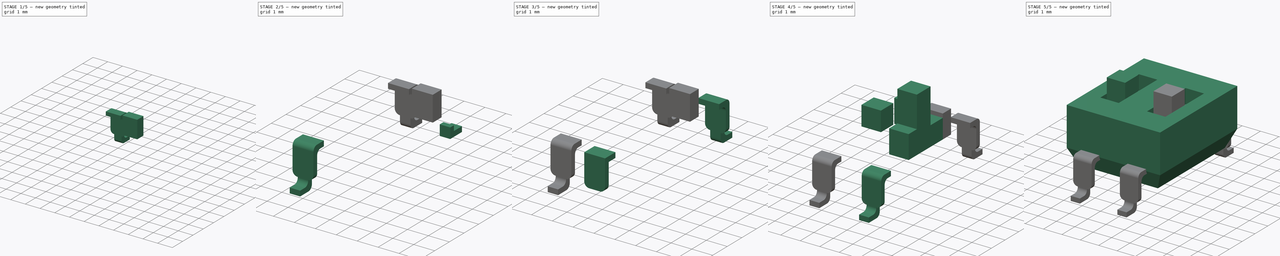
[diagram: build sequence overview — one tinted view per stage of 5, left to right]
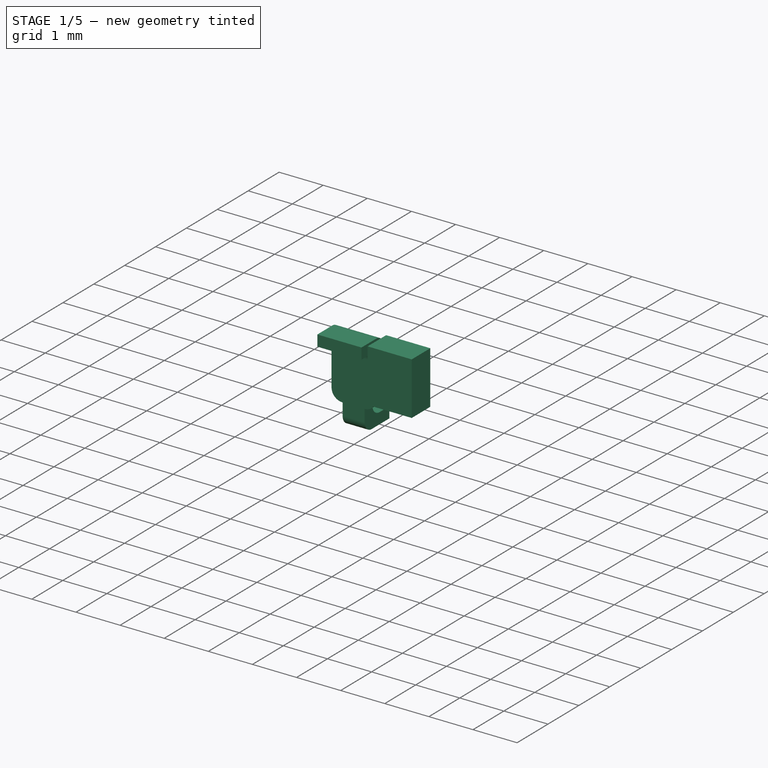
[diagram: stage 1 of 5 — iso view after this stage's code; geometry added in this stage tinted green]
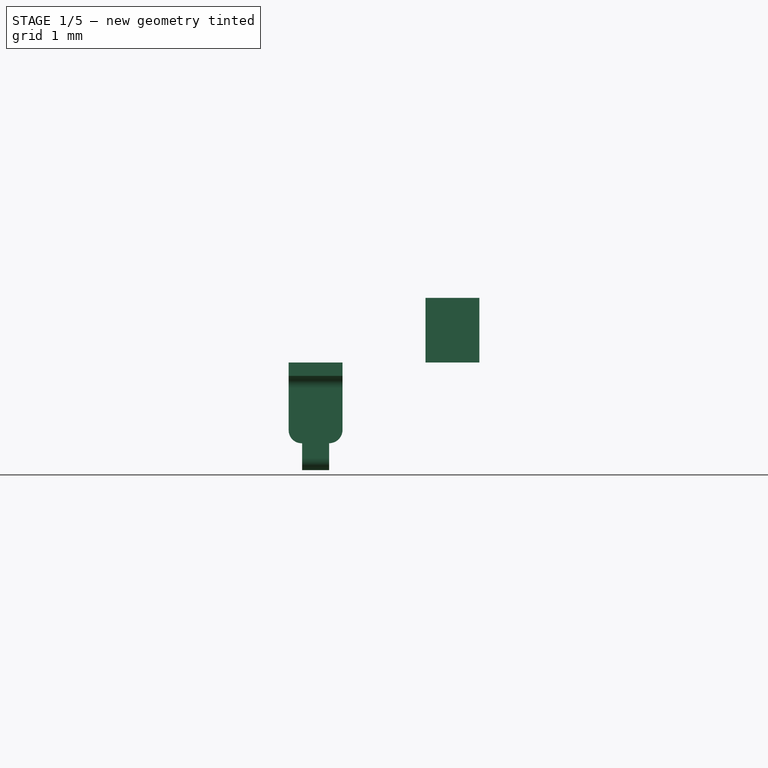
[diagram: stage 1 of 5 — front view after this stage's code; geometry added in this stage tinted green]
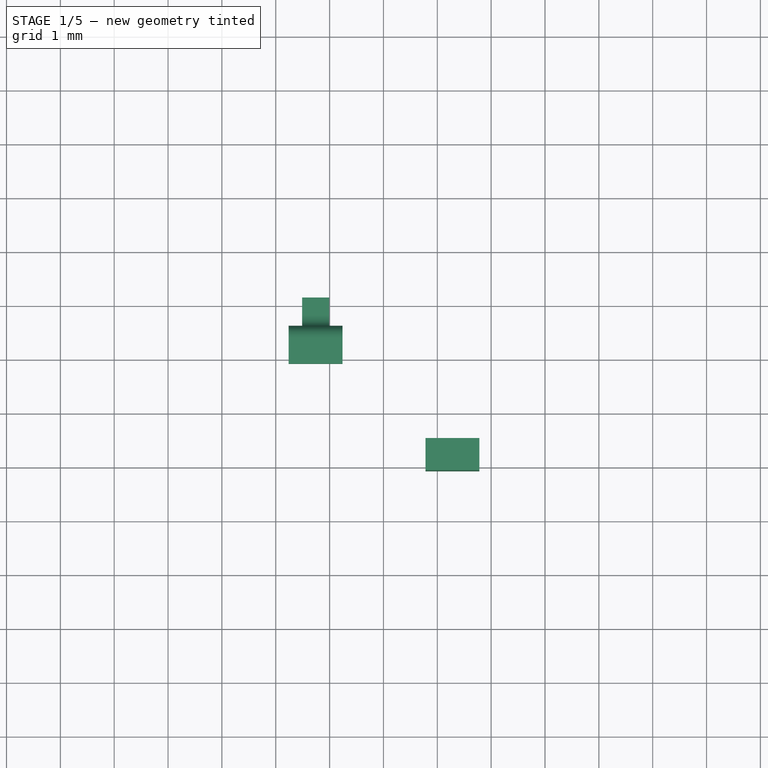
[diagram: stage 1 of 5 — top view after this stage's code; geometry added in this stage tinted green]
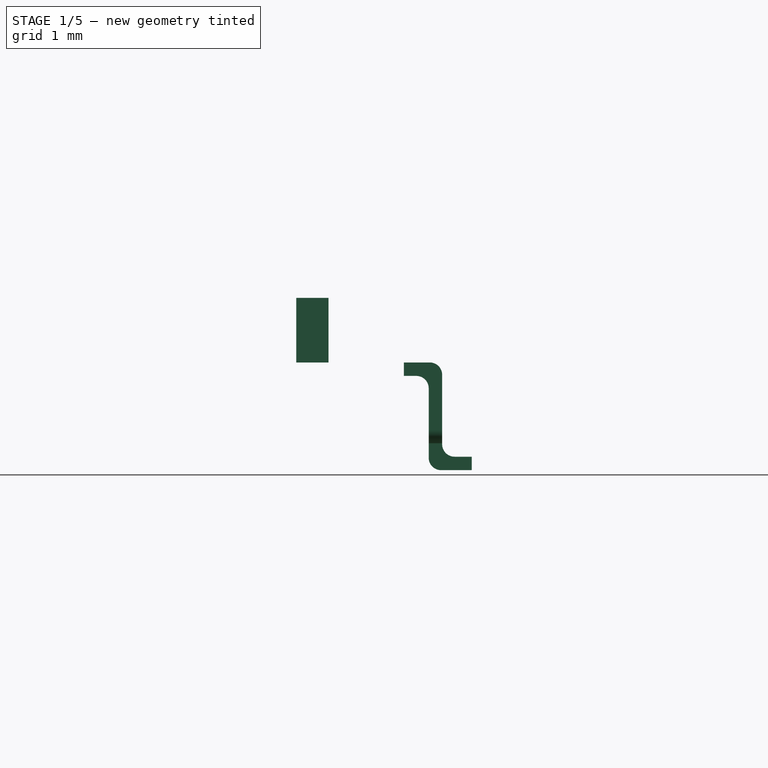
[diagram: stage 1 of 5 — right view after this stage's code; geometry added in this stage tinted green]
FCSTD DOCUMENT  (FreeCAD 0.19R24366 (Git))
Label: DSIC02LSGET
License: Creative Commons Attribution-ShareAlike
LicenseURL: http://creativecommons.org/licenses/by-sa/4.0/
objects: Part::Box×21, Part::MultiFuse×9, Sketcher::SketchObject×8, PartDesign::Pad×8, PartDesign::Body×8, Part::Fillet×8, Part::Cut×5, Part::Part2DObjectPython×4, Part::Chamfer×1
note: 80 computed .brp shape members not serialized (recipe doc carries the construction recipe); baked Part::Feature solids carry a one-line shape summary decoded from their .brp

FEATURE [Sketcher::SketchObject] Sketch006
  FullyConstrained = true
  MapMode = 5
  Placement = pos=(0,0,0) rot=(0.57735,0.57735,0.57735;2.0944rad)
  Support = -> [YZ_Plane006]
  sketch-geometry (6):
    g0: LineSegment StartX=3.1 StartY=2 StartZ=0 EndX=3.81 EndY=2 EndZ=0
    g1: LineSegment StartX=3.1 StartY=1.75 StartZ=0 EndX=3.56 EndY=1.75 EndZ=0
    g2: LineSegment StartX=3.56 StartY=1.75 StartZ=0 EndX=3.56 EndY=0.49 EndZ=0
    g3: LineSegment StartX=3.56 StartY=0.49 StartZ=0 EndX=3.81 EndY=0.49 EndZ=0
    g4: LineSegment StartX=3.81 StartY=2 StartZ=0 EndX=3.81 EndY=0.49 EndZ=0
    g5: LineSegment StartX=3.1 StartY=2 StartZ=0 EndX=3.1 EndY=1.75 EndZ=0
  constraints (18):
    c: Horizontal(g0)
    c: Horizontal(g1)
    c: Vertical(g2)
    c: Horizontal(g3)
    c: Vertical(g4)
    c: Vertical(g5)
    c: Coincident(g0,g5)
    c: Coincident(g1,g5)
    c: Coincident(g0,g4)
    c: Coincident(g3,g4)
    c: Coincident(g2,g3)
    c: Coincident(g1,g2)
    c: DistanceY(g0) = 2
    c: DistanceX(g0) = 3.81
    c: DistanceX(g1) = 3.56
    c: DistanceY(g1) = 1.75
    c: DistanceY(g2) = 0.49
    c: DistanceX(g1) = 3.1
FEATURE [PartDesign::Pad] Pad006
  Direction = (1,1,1)
  Length = 1
  Length2 = 100
  Placement = pos=(0,0,0) rot=(0.57735,0.57735,0.57735;2.0944rad)
  Profile = -> Sketch006
  Type = 0
FEATURE [PartDesign::Body] Body006
  Group = -> [Sketch006,Pad006]
  Origin = -> Origin006
  Tip = -> Pad006
FEATURE [Sketcher::SketchObject] Sketch007
  FullyConstrained = true
  MapMode = 5
  Placement = pos=(0,0,0) rot=(1,0,0;1.5708rad)
  Support = -> [XZ_Plane007]
  sketch-geometry (6):
    g0: LineSegment StartX=0.25 StartY=0.5 StartZ=0 EndX=0.75 EndY=0.5 EndZ=0
    g1: ArcOfCircle CenterX=0.24 CenterY=0.74 CenterZ=0 NormalX=0 NormalY=0 NormalZ=1 AngleXU=0 Radius=0.240208 StartAngle=3.09995 EndAngle=4.75403
    g2: ArcOfCircle CenterX=0.75 CenterY=0.75 CenterZ=0 NormalX=0 NormalY=0 NormalZ=1 AngleXU=0 Radius=0.25 StartAngle=4.71239 EndAngle=6.28319
    g3: LineSegment StartX=9.0039e-12 StartY=0.75 StartZ=0 EndX=9.0039e-12 EndY=0.48 EndZ=0
    g4: LineSegment StartX=9.0039e-12 StartY=0.48 StartZ=0 EndX=1 EndY=0.48 EndZ=0
    g5: LineSegment StartX=1 StartY=0.48 StartZ=0 EndX=1 EndY=0.75 EndZ=0
  constraints (20):
    c: Horizontal(g0)
    c: Vertical(g3)
    c: Horizontal(g4)
    c: Vertical(g5)
    c: Coincident(g3,g4)
    c: DistanceX(g3) = 0
    c: Coincident(g4,g5)
    c: DistanceX(g4) = 1
    c: DistanceY(g3) = 0.75
    c: DistanceY(g3) = 0.48
    c: DistanceX(g0) = 0.25
    c: DistanceX(g0) = 0.75
    c: DistanceY(g5) = 0.75
    c: DistanceY(g0) = 0.5
    c: Coincident(g1,g3)
    c: Coincident(g0,g1)
    c: Coincident(g0,g2)
    c: Coincident(g2,g5)
    c: DistanceX(g1) = 0.24
    c: DistanceX(g2) = 0.75
FEATURE [PartDesign::Pad] Pad007
  Direction = (1,1,1)
  Length = 0.25
  Length2 = 100
  Placement = pos=(0,0,0) rot=(1,0,0;1.5708rad)
  Profile = -> Sketch007
  Type = 0
FEATURE [PartDesign::Body] Body007
  Group = -> [Sketch007,Pad007]
  Origin = -> Origin007
  Placement = pos=(0,3.81,0) rot=(0,0,1;0rad)
  Tip = -> Pad007
FEATURE [Part::Cut] Cut004
  Base = -> Body006
  Tool = -> Body007
FEATURE [Part::Fillet] Fillet006
  Base = -> Cut004
  Edges = 2 edges r=0.23: [Edge2,Edge19]
FEATURE [Part::Box] Box018  label="Cube018"
  AttacherType = Attacher::AttachEngine3D
  Height = 0.25
  Length = 0.5
  Placement = pos=(0.25,3.56,0) rot=(0,0,1;0rad)
  Width = 0.8
FEATURE [Part::Box] Box019  label="Cube019"
  AttacherType = Attacher::AttachEngine3D
  Height = 0.25
  Length = 0.5
  Placement = pos=(0.25,3.56,0.25) rot=(0,0,1;0rad)
  Width = 0.25
FEATURE [Part::MultiFuse] Fusion007
  Shapes = -> [Box019,Box018]
FEATURE [Part::Fillet] Fillet007
  Base = -> Fusion007
  Edges = 2 edges r=0.23: [Edge10,Edge16]
FEATURE [Part::MultiFuse] Fusion008
  Placement = pos=(-1.76,-0.2,0) rot=(0,0,1;0rad)
  Shapes = -> [Fillet006,Fillet007]
FEATURE [Part::Part2DObjectPython] ShapeString  # Draft 2D object (typed FeaturePython)
  FontFile = <path>
  Placement = pos=(-2.2,1.8,4.05) rot=(0,0,1;0rad)
  Size = 1
  String = ON
  Tracking = 0
FEATURE [Part::Part2DObjectPython] ShapeString001  # Draft 2D object (typed FeaturePython)
  FontFile = <path>
  Placement = pos=(-1.6,-2.7,4.05) rot=(0,0,1;0rad)
  Size = 0.8
  String = 1
  Tracking = 0
FEATURE [Part::Part2DObjectPython] ShapeString002  # Draft 2D object (typed FeaturePython)
  FontFile = <path>
  Placement = pos=(1,-2.7,4.05) rot=(0,0,1;0rad)
  Size = 0.8
  String = 2
  Tracking = 0
FEATURE [Part::Part2DObjectPython] ShapeString003  # Draft 2D object (typed FeaturePython)
  FontFile = <path>
  Placement = pos=(0.4,1.8,4.05) rot=(0,0,1;0rad)
  Size = 1
  String = KE
  Tracking = 0
FEATURE [Part::Box] Box020  label="Cube020"
  AttacherType = Attacher::AttachEngine3D
  Height = 1.2
  Length = 1
  Placement = pos=(0.78,0.9,2) rot=(0,0,1;0rad)
  Width = 0.6
note: 4 file-system paths scrubbed to <path> (originals preserved in the JSON sidecar)
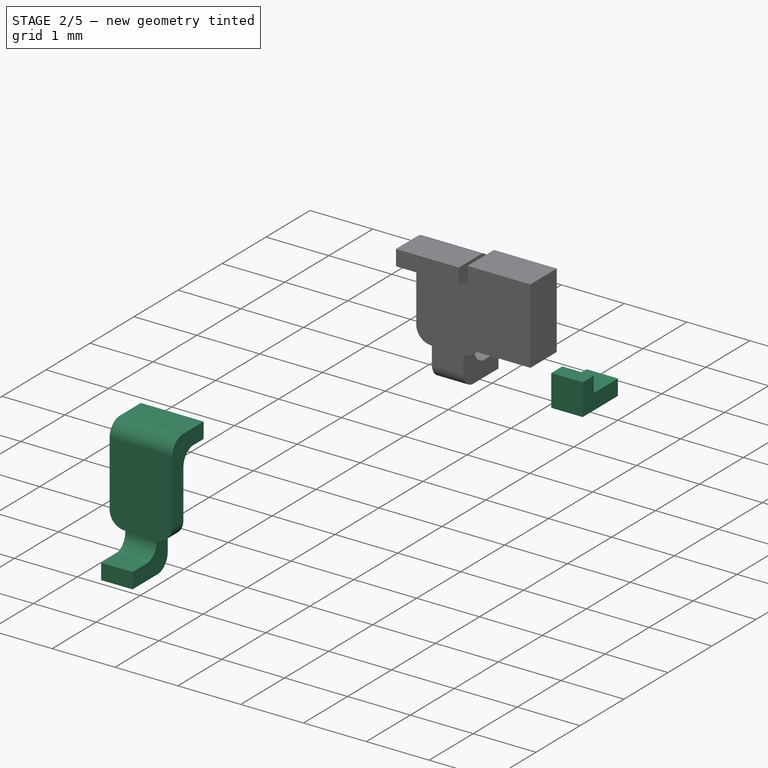
[diagram: stage 2 of 5 — iso view after this stage's code; geometry added in this stage tinted green]
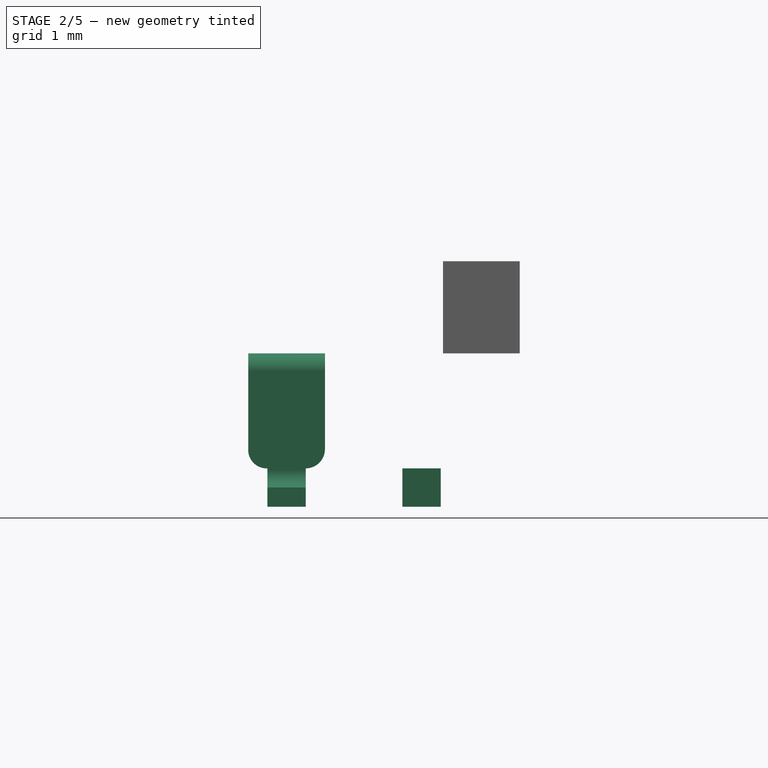
[diagram: stage 2 of 5 — front view after this stage's code; geometry added in this stage tinted green]
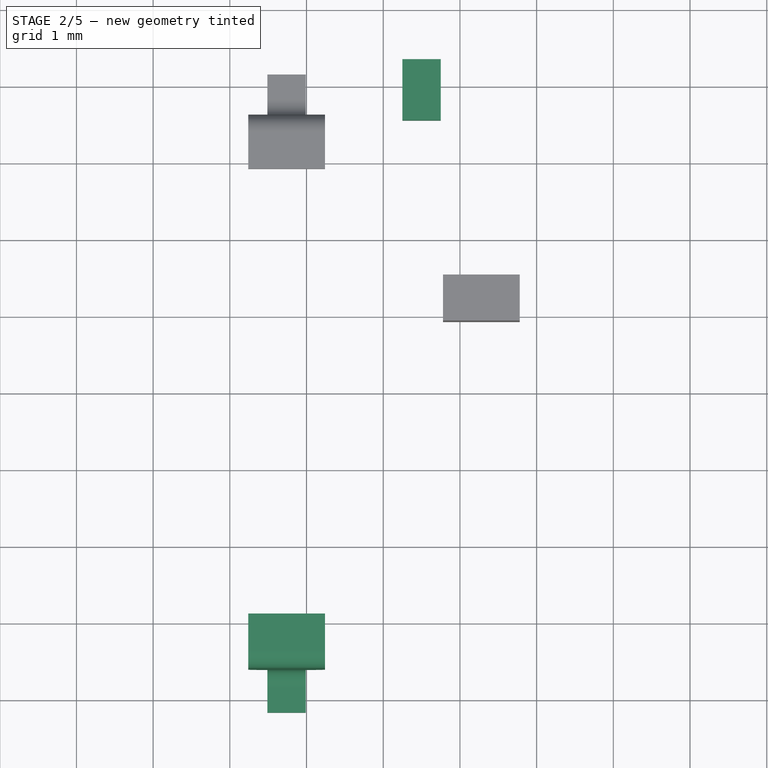
[diagram: stage 2 of 5 — top view after this stage's code; geometry added in this stage tinted green]
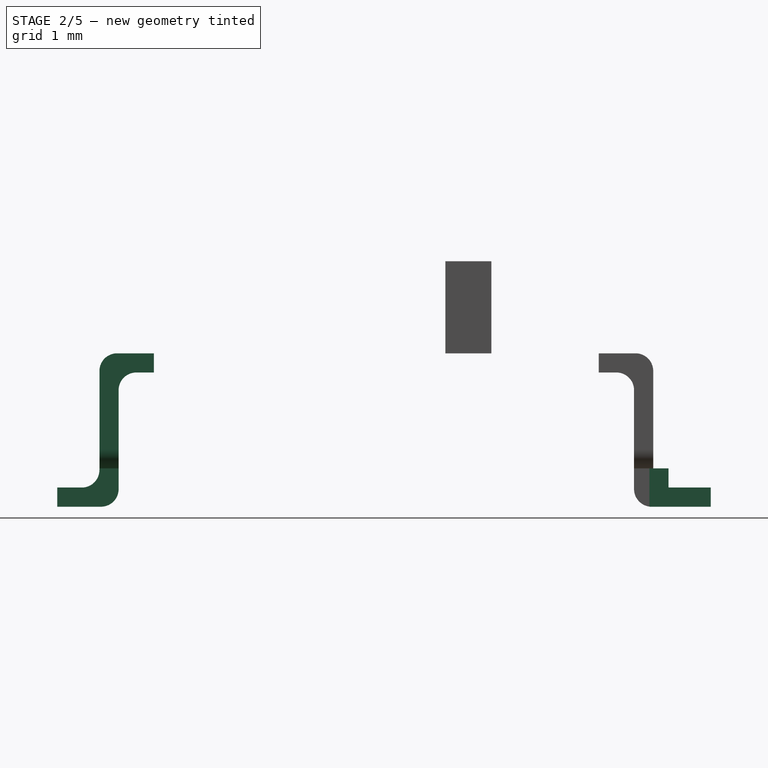
[diagram: stage 2 of 5 — right view after this stage's code; geometry added in this stage tinted green]
FEATURE [Part::Box] Box014  label="Cube014"
  AttacherType = Attacher::AttachEngine3D
  Height = 0.25
  Length = 0.5
  Placement = pos=(0.25,3.56,0) rot=(0,0,1;0rad)
  Width = 0.8
FEATURE [Part::Box] Box015  label="Cube015"
  AttacherType = Attacher::AttachEngine3D
  Height = 0.25
  Length = 0.5
  Placement = pos=(0.25,3.56,0.25) rot=(0,0,1;0rad)
  Width = 0.25
FEATURE [Sketcher::SketchObject] Sketch004
  FullyConstrained = true
  MapMode = 5
  Placement = pos=(0,0,0) rot=(0.57735,0.57735,0.57735;2.0944rad)
  Support = -> [YZ_Plane004]
  sketch-geometry (6):
    g0: LineSegment StartX=-3.1 StartY=2 StartZ=0 EndX=-3.81 EndY=2 EndZ=0
    g1: LineSegment StartX=-3.1 StartY=1.75 StartZ=0 EndX=-3.56 EndY=1.75 EndZ=0
    g2: LineSegment StartX=-3.56 StartY=1.75 StartZ=0 EndX=-3.56 EndY=0.49 EndZ=0
    g3: LineSegment StartX=-3.81 StartY=2 StartZ=0 EndX=-3.81 EndY=0.49 EndZ=0
    g4: LineSegment StartX=-3.1 StartY=2 StartZ=0 EndX=-3.1 EndY=1.75 EndZ=0
    g5: LineSegment StartX=-3.81 StartY=0.49 StartZ=0 EndX=-3.56 EndY=0.49 EndZ=0
  constraints (18):
    c: Horizontal(g0)
    c: Horizontal(g1)
    c: Vertical(g2)
    c: Vertical(g3)
    c: DistanceX(g0) = -3.1
    c: DistanceY(g0) = 2
    c: DistanceX(g0) = -3.81
    c: Coincident(g0,g3)
    c: DistanceX(g1) = -3.56
    c: Coincident(g1,g2)
    c: DistanceY(g1) = 1.75
    c: DistanceX(g1) = -3.1
    c: Coincident(g0,g4)
    c: Coincident(g1,g4)
    c: Horizontal(g5)
    c: Coincident(g3,g5)
    c: Coincident(g2,g5)
    c: DistanceY(g3) = 0.49
FEATURE [PartDesign::Pad] Pad004
  Direction = (1,1,1)
  Length = 1
  Length2 = 100
  Placement = pos=(0,0,0) rot=(0.57735,0.57735,0.57735;2.0944rad)
  Profile = -> Sketch004
  Type = 0
FEATURE [PartDesign::Body] Body004
  Group = -> [Sketch004,Pad004]
  Origin = -> Origin004
  Tip = -> Pad004
FEATURE [Sketcher::SketchObject] Sketch005
  FullyConstrained = true
  MapMode = 5
  Placement = pos=(0,0,0) rot=(1,0,0;1.5708rad)
  Support = -> [XZ_Plane005]
  sketch-geometry (6):
    g0: LineSegment StartX=0.25 StartY=0.5 StartZ=0 EndX=0.75 EndY=0.5 EndZ=0
    g1: ArcOfCircle CenterX=0.24 CenterY=0.74 CenterZ=0 NormalX=0 NormalY=0 NormalZ=1 AngleXU=0 Radius=0.240208 StartAngle=3.09995 EndAngle=4.75403
    g2: ArcOfCircle CenterX=0.75 CenterY=0.75 CenterZ=0 NormalX=0 NormalY=0 NormalZ=1 AngleXU=0 Radius=0.25 StartAngle=4.71239 EndAngle=6.28319
    g3: LineSegment StartX=9.0039e-12 StartY=0.75 StartZ=0 EndX=9.0039e-12 EndY=0.48 EndZ=0
    g4: LineSegment StartX=9.0039e-12 StartY=0.48 StartZ=0 EndX=1 EndY=0.48 EndZ=0
    g5: LineSegment StartX=1 StartY=0.48 StartZ=0 EndX=1 EndY=0.75 EndZ=0
  constraints (20):
    c: Horizontal(g0)
    c: Vertical(g3)
    c: Horizontal(g4)
    c: Vertical(g5)
    c: Coincident(g3,g4)
    c: DistanceX(g3) = 0
    c: Coincident(g4,g5)
    c: DistanceX(g4) = 1
    c: DistanceY(g3) = 0.75
    c: DistanceY(g3) = 0.48
    c: DistanceX(g0) = 0.25
    c: DistanceX(g0) = 0.75
    c: DistanceY(g5) = 0.75
    c: DistanceY(g0) = 0.5
    c: Coincident(g1,g3)
    c: Coincident(g0,g1)
    c: Coincident(g0,g2)
    c: Coincident(g2,g5)
    c: DistanceX(g1) = 0.24
    c: DistanceX(g2) = 0.75
FEATURE [PartDesign::Pad] Pad005
  Direction = (1,1,1)
  Length = 0.25
  Length2 = 100
  Placement = pos=(0,0,0) rot=(1,0,0;1.5708rad)
  Profile = -> Sketch005
  Type = 0
FEATURE [PartDesign::Body] Body005
  Group = -> [Sketch005,Pad005]
  Origin = -> Origin005
  Placement = pos=(0,-3.56,0) rot=(0,0,1;0rad)
  Tip = -> Pad005
FEATURE [Part::Cut] Cut003
  Base = -> Body004
  Tool = -> Body005
FEATURE [Part::Box] Box016  label="Cube016"
  AttacherType = Attacher::AttachEngine3D
  Height = 0.25
  Length = 0.5
  Placement = pos=(0.25,-4.36,0) rot=(0,0,1;0rad)
  Width = 0.8
FEATURE [Part::Box] Box017  label="Cube017"
  AttacherType = Attacher::AttachEngine3D
  Height = 0.25
  Length = 0.5
  Placement = pos=(0.25,-3.81,0.25) rot=(0,0,1;0rad)
  Width = 0.25
FEATURE [Part::MultiFuse] Fusion005
  Shapes = -> [Box016,Box017]
FEATURE [Part::Fillet] Fillet004
  Base = -> Fusion005
  Edges = 2 edges r=0.23: [Edge9,Edge14]
FEATURE [Part::Fillet] Fillet005
  Base = -> Cut003
  Edges = 2 edges r=0.23: [Edge5,Edge8]
FEATURE [Part::MultiFuse] Fusion006
  Placement = pos=(-1.76,0.2,0) rot=(0,0,1;0rad)
  Shapes = -> [Fillet005,Fillet004]
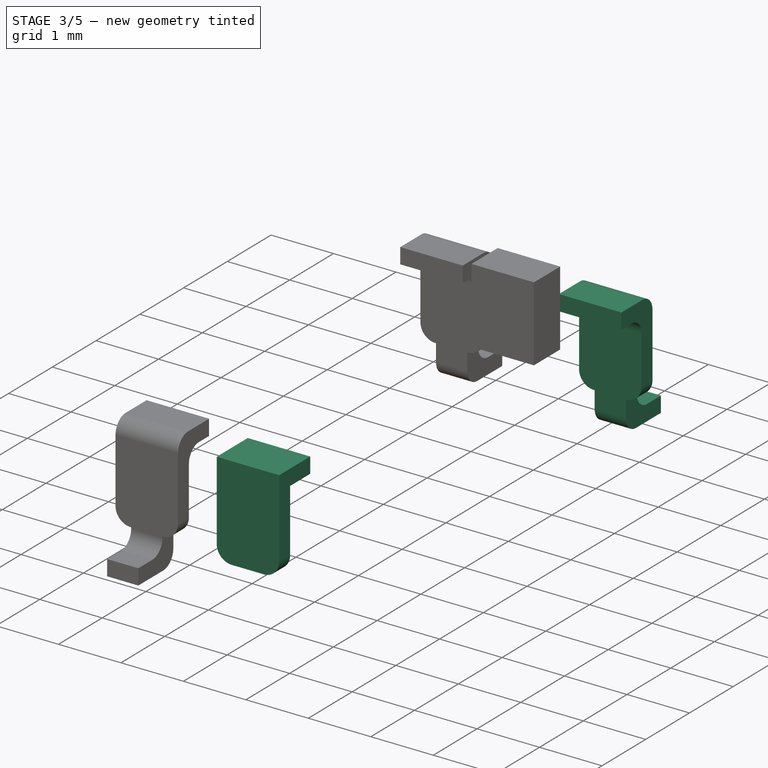
[diagram: stage 3 of 5 — iso view after this stage's code; geometry added in this stage tinted green]
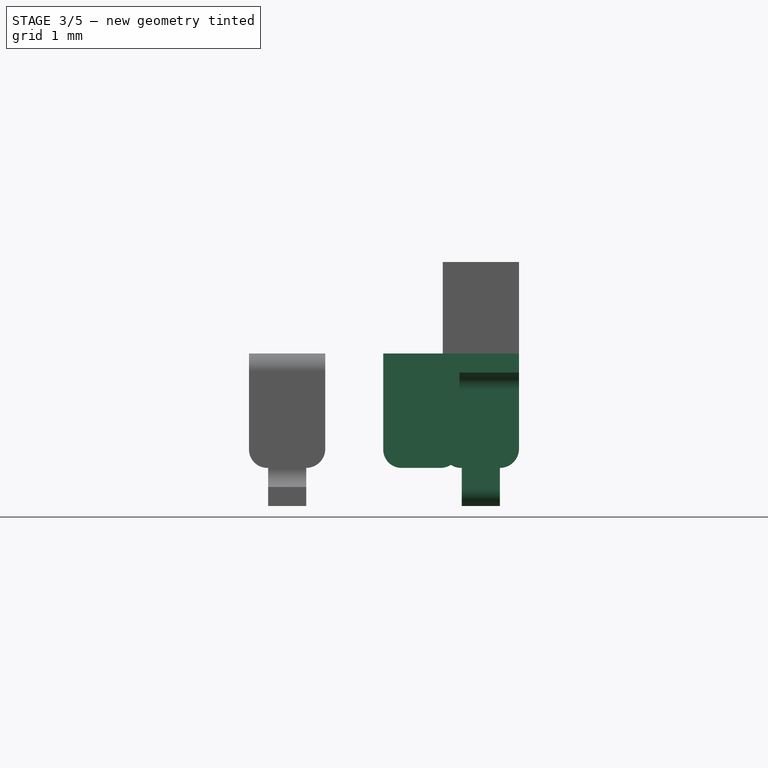
[diagram: stage 3 of 5 — front view after this stage's code; geometry added in this stage tinted green]
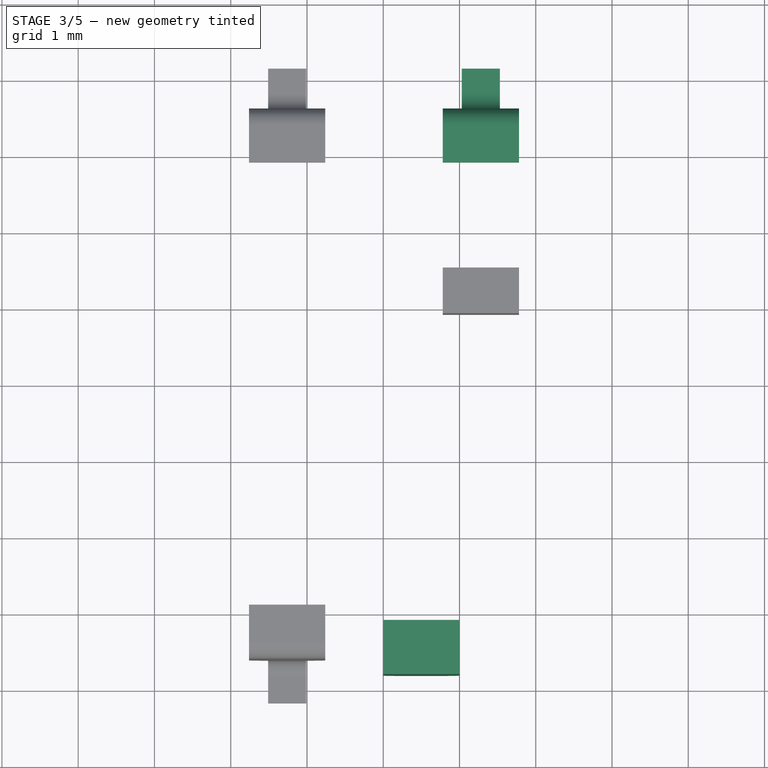
[diagram: stage 3 of 5 — top view after this stage's code; geometry added in this stage tinted green]
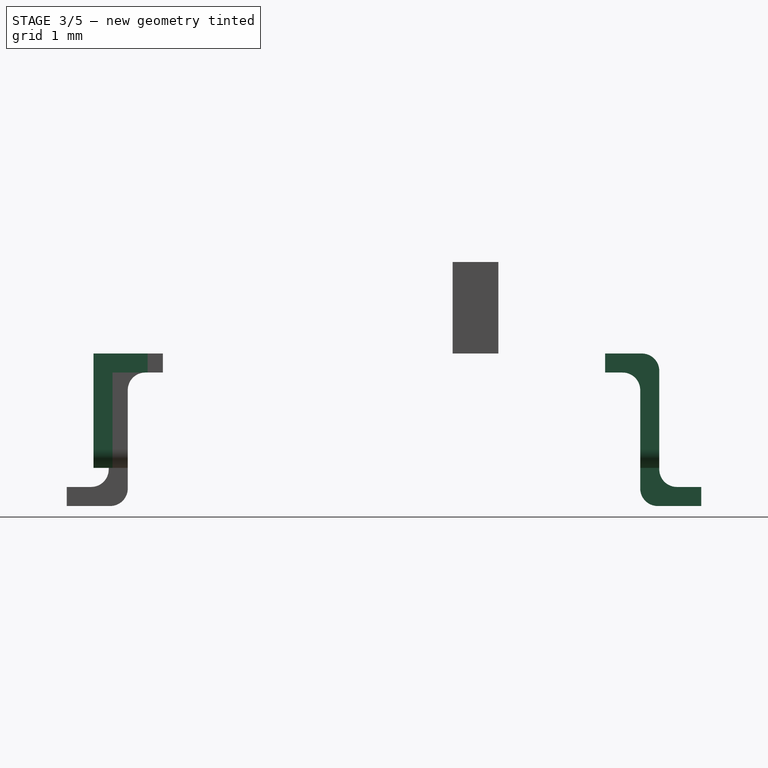
[diagram: stage 3 of 5 — right view after this stage's code; geometry added in this stage tinted green]
FEATURE [Sketcher::SketchObject] Sketch
  FullyConstrained = true
  MapMode = 5
  Placement = pos=(0,0,0) rot=(0.57735,0.57735,0.57735;2.0944rad)
  Support = -> [YZ_Plane]
  sketch-geometry (6):
    g0: LineSegment StartX=-3.1 StartY=2 StartZ=0 EndX=-3.81 EndY=2 EndZ=0
    g1: LineSegment StartX=-3.1 StartY=1.75 StartZ=0 EndX=-3.56 EndY=1.75 EndZ=0
    g2: LineSegment StartX=-3.56 StartY=1.75 StartZ=0 EndX=-3.56 EndY=0.49 EndZ=0
    g3: LineSegment StartX=-3.81 StartY=2 StartZ=0 EndX=-3.81 EndY=0.49 EndZ=0
    g4: LineSegment StartX=-3.1 StartY=2 StartZ=0 EndX=-3.1 EndY=1.75 EndZ=0
    g5: LineSegment StartX=-3.81 StartY=0.49 StartZ=0 EndX=-3.56 EndY=0.49 EndZ=0
  constraints (18):
    c: Horizontal(g0)
    c: Horizontal(g1)
    c: Vertical(g2)
    c: Vertical(g3)
    c: DistanceX(g0) = -3.1
    c: DistanceY(g0) = 2
    c: DistanceX(g0) = -3.81
    c: Coincident(g0,g3)
    c: DistanceX(g1) = -3.56
    c: Coincident(g1,g2)
    c: DistanceY(g1) = 1.75
    c: DistanceX(g1) = -3.1
    c: Coincident(g0,g4)
    c: Coincident(g1,g4)
    c: Horizontal(g5)
    c: Coincident(g3,g5)
    c: Coincident(g2,g5)
    c: DistanceY(g3) = 0.49
FEATURE [PartDesign::Pad] Pad
  Direction = (1,1,1)
  Length = 1
  Length2 = 100
  Placement = pos=(0,0,0) rot=(0.57735,0.57735,0.57735;2.0944rad)
  Profile = -> Sketch
  Type = 0
FEATURE [PartDesign::Body] Body
  Group = -> [Sketch,Pad]
  Origin = -> Origin
  Tip = -> Pad
FEATURE [Sketcher::SketchObject] Sketch001
  FullyConstrained = true
  MapMode = 5
  Placement = pos=(0,0,0) rot=(0.57735,0.57735,0.57735;2.0944rad)
  Support = -> [YZ_Plane001]
  sketch-geometry (6):
    g0: LineSegment StartX=3.1 StartY=2 StartZ=0 EndX=3.81 EndY=2 EndZ=0
    g1: LineSegment StartX=3.1 StartY=1.75 StartZ=0 EndX=3.56 EndY=1.75 EndZ=0
    g2: LineSegment StartX=3.56 StartY=1.75 StartZ=0 EndX=3.56 EndY=0.49 EndZ=0
    g3: LineSegment StartX=3.56 StartY=0.49 StartZ=0 EndX=3.81 EndY=0.49 EndZ=0
    g4: LineSegment StartX=3.81 StartY=2 StartZ=0 EndX=3.81 EndY=0.49 EndZ=0
    g5: LineSegment StartX=3.1 StartY=2 StartZ=0 EndX=3.1 EndY=1.75 EndZ=0
  constraints (18):
    c: Horizontal(g0)
    c: Horizontal(g1)
    c: Vertical(g2)
    c: Horizontal(g3)
    c: Vertical(g4)
    c: Vertical(g5)
    c: Coincident(g0,g5)
    c: Coincident(g1,g5)
    c: Coincident(g0,g4)
    c: Coincident(g3,g4)
    c: Coincident(g2,g3)
    c: Coincident(g1,g2)
    c: DistanceY(g0) = 2
    c: DistanceX(g0) = 3.81
    c: DistanceX(g1) = 3.56
    c: DistanceY(g1) = 1.75
    c: DistanceY(g2) = 0.49
    c: DistanceX(g1) = 3.1
FEATURE [PartDesign::Pad] Pad001
  Direction = (1,1,1)
  Length = 1
  Length2 = 100
  Placement = pos=(0,0,0) rot=(0.57735,0.57735,0.57735;2.0944rad)
  Profile = -> Sketch001
  Type = 0
FEATURE [PartDesign::Body] Body001
  Group = -> [Sketch001,Pad001]
  Origin = -> Origin001
  Tip = -> Pad001
FEATURE [Sketcher::SketchObject] Sketch002
  FullyConstrained = true
  MapMode = 5
  Placement = pos=(0,0,0) rot=(1,0,0;1.5708rad)
  Support = -> [XZ_Plane002]
  sketch-geometry (6):
    g0: LineSegment StartX=0.25 StartY=0.5 StartZ=0 EndX=0.75 EndY=0.5 EndZ=0
    g1: ArcOfCircle CenterX=0.24 CenterY=0.74 CenterZ=0 NormalX=0 NormalY=0 NormalZ=1 AngleXU=0 Radius=0.240208 StartAngle=3.09995 EndAngle=4.75403
    g2: ArcOfCircle CenterX=0.75 CenterY=0.75 CenterZ=0 NormalX=0 NormalY=0 NormalZ=1 AngleXU=0 Radius=0.25 StartAngle=4.71239 EndAngle=6.28319
    g3: LineSegment StartX=9.0039e-12 StartY=0.75 StartZ=0 EndX=9.0039e-12 EndY=0.48 EndZ=0
    g4: LineSegment StartX=9.0039e-12 StartY=0.48 StartZ=0 EndX=1 EndY=0.48 EndZ=0
    g5: LineSegment StartX=1 StartY=0.48 StartZ=0 EndX=1 EndY=0.75 EndZ=0
  constraints (20):
    c: Horizontal(g0)
    c: Vertical(g3)
    c: Horizontal(g4)
    c: Vertical(g5)
    c: Coincident(g3,g4)
    c: DistanceX(g3) = 0
    c: Coincident(g4,g5)
    c: DistanceX(g4) = 1
    c: DistanceY(g3) = 0.75
    c: DistanceY(g3) = 0.48
    c: DistanceX(g0) = 0.25
    c: DistanceX(g0) = 0.75
    c: DistanceY(g5) = 0.75
    c: DistanceY(g0) = 0.5
    c: Coincident(g1,g3)
    c: Coincident(g0,g1)
    c: Coincident(g0,g2)
    c: Coincident(g2,g5)
    c: DistanceX(g1) = 0.24
    c: DistanceX(g2) = 0.75
FEATURE [PartDesign::Pad] Pad002
  Direction = (1,1,1)
  Length = 0.25
  Length2 = 100
  Placement = pos=(0,0,0) rot=(1,0,0;1.5708rad)
  Profile = -> Sketch002
  Type = 0
FEATURE [PartDesign::Body] Body002
  Group = -> [Sketch002,Pad002]
  Origin = -> Origin002
  Placement = pos=(0,-3.56,0) rot=(0,0,1;0rad)
  Tip = -> Pad002
FEATURE [Sketcher::SketchObject] Sketch003
  FullyConstrained = true
  MapMode = 5
  Placement = pos=(0,0,0) rot=(1,0,0;1.5708rad)
  Support = -> [XZ_Plane003]
  sketch-geometry (6):
    g0: LineSegment StartX=0.25 StartY=0.5 StartZ=0 EndX=0.75 EndY=0.5 EndZ=0
    g1: ArcOfCircle CenterX=0.24 CenterY=0.74 CenterZ=0 NormalX=0 NormalY=0 NormalZ=1 AngleXU=0 Radius=0.240208 StartAngle=3.09995 EndAngle=4.75403
    g2: ArcOfCircle CenterX=0.75 CenterY=0.75 CenterZ=0 NormalX=0 NormalY=0 NormalZ=1 AngleXU=0 Radius=0.25 StartAngle=4.71239 EndAngle=6.28319
    g3: LineSegment StartX=9.0039e-12 StartY=0.75 StartZ=0 EndX=9.0039e-12 EndY=0.48 EndZ=0
    g4: LineSegment StartX=9.0039e-12 StartY=0.48 StartZ=0 EndX=1 EndY=0.48 EndZ=0
    g5: LineSegment StartX=1 StartY=0.48 StartZ=0 EndX=1 EndY=0.75 EndZ=0
  constraints (20):
    c: Horizontal(g0)
    c: Vertical(g3)
    c: Horizontal(g4)
    c: Vertical(g5)
    c: Coincident(g3,g4)
    c: DistanceX(g3) = 0
    c: Coincident(g4,g5)
    c: DistanceX(g4) = 1
    c: DistanceY(g3) = 0.75
    c: DistanceY(g3) = 0.48
    c: DistanceX(g0) = 0.25
    c: DistanceX(g0) = 0.75
    c: DistanceY(g5) = 0.75
    c: DistanceY(g0) = 0.5
    c: Coincident(g1,g3)
    c: Coincident(g0,g1)
    c: Coincident(g0,g2)
    c: Coincident(g2,g5)
    c: DistanceX(g1) = 0.24
    c: DistanceX(g2) = 0.75
FEATURE [PartDesign::Pad] Pad003
  Direction = (1,1,1)
  Length = 0.25
  Length2 = 100
  Placement = pos=(0,0,0) rot=(1,0,0;1.5708rad)
  Profile = -> Sketch003
  Type = 0
FEATURE [PartDesign::Body] Body003
  Group = -> [Sketch003,Pad003]
  Origin = -> Origin003
  Placement = pos=(0,3.81,0) rot=(0,0,1;0rad)
  Tip = -> Pad003
FEATURE [Part::Cut] Cut001
  Base = -> Body001
  Tool = -> Body003
FEATURE [Part::Cut] Cut002
  Base = -> Body
  Tool = -> Body002
FEATURE [Part::Fillet] Fillet
  Base = -> Cut001
  Edges = 2 edges r=0.23: [Edge2,Edge19]
FEATURE [Part::MultiFuse] Fusion002
  Shapes = -> [Box015,Box014]
FEATURE [Part::Fillet] Fillet003
  Base = -> Fusion002
  Edges = 2 edges r=0.23: [Edge10,Edge16]
FEATURE [Part::MultiFuse] Fusion004
  Placement = pos=(0.78,-0.2,0) rot=(0,0,1;0rad)
  Shapes = -> [Fillet,Fillet003]
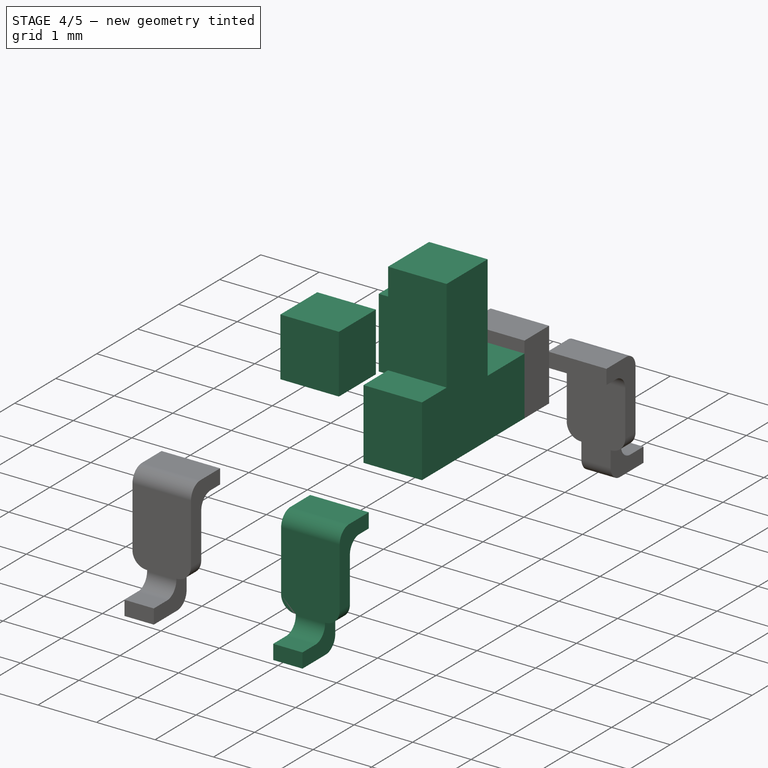
[diagram: stage 4 of 5 — iso view after this stage's code; geometry added in this stage tinted green]
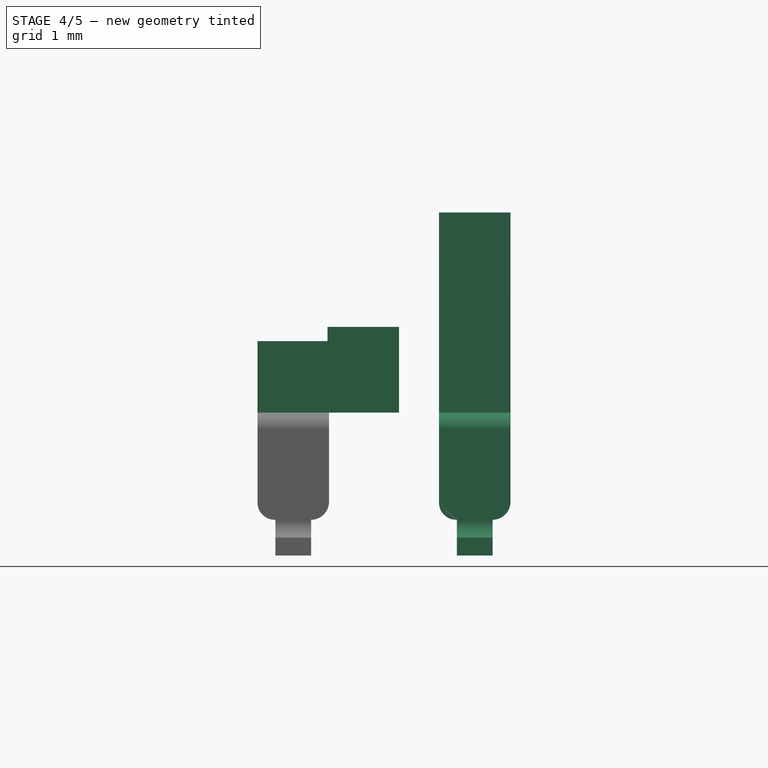
[diagram: stage 4 of 5 — front view after this stage's code; geometry added in this stage tinted green]
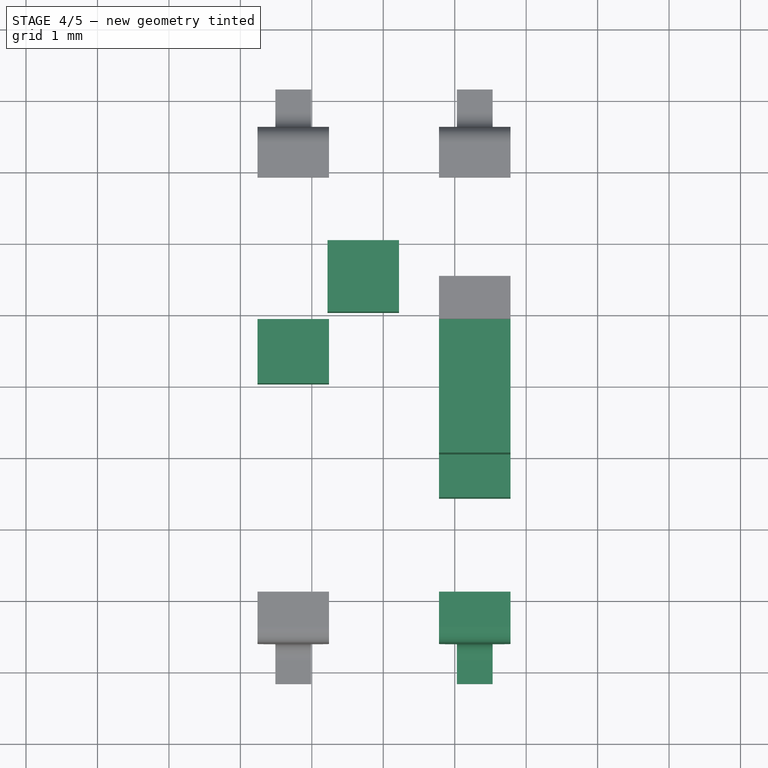
[diagram: stage 4 of 5 — top view after this stage's code; geometry added in this stage tinted green]
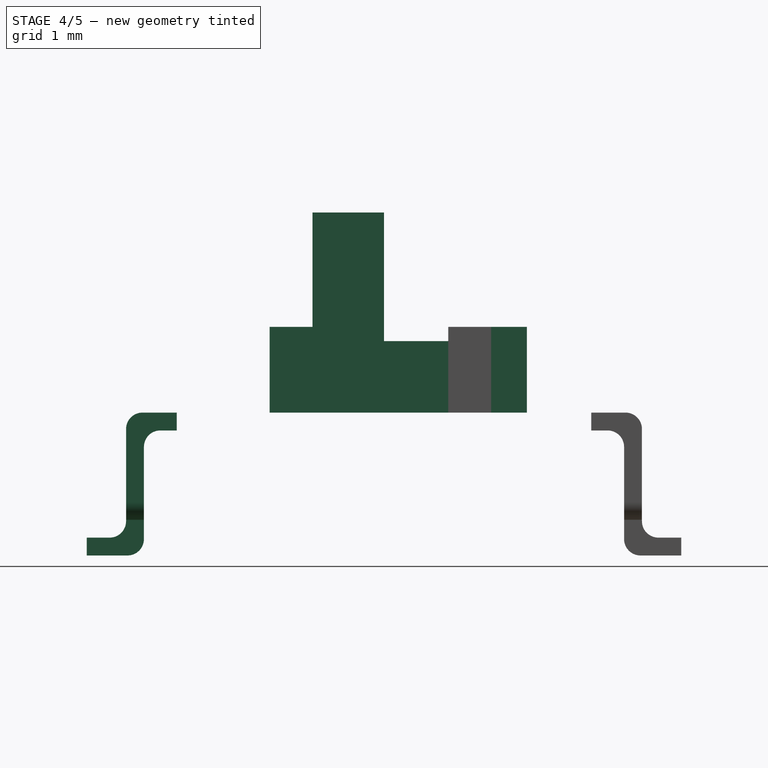
[diagram: stage 4 of 5 — right view after this stage's code; geometry added in this stage tinted green]
FEATURE [Part::Box] Box007  label="Cube007"
  AttacherType = Attacher::AttachEngine3D
  Height = 1
  Length = 1
  Placement = pos=(-1.76,0,2) rot=(0,0,1;0rad)
  Width = 0.9
FEATURE [Part::Box] Box008  label="Cube008"
  AttacherType = Attacher::AttachEngine3D
  Height = 2.8
  Length = 1
  Placement = pos=(0.78,-1,2) rot=(0,0,1;0rad)
  Width = 1
FEATURE [Part::Box] Box009  label="Cube009"
  AttacherType = Attacher::AttachEngine3D
  Height = 1.2
  Length = 1
  Placement = pos=(0.78,-1.6,2) rot=(0,0,1;0rad)
  Width = 0.6
FEATURE [Part::Box] Box010  label="Cube010"
  AttacherType = Attacher::AttachEngine3D
  Height = 1.2
  Length = 1
  Placement = pos=(-0.78,1,2) rot=(0,0,1;0rad)
  Width = 1
FEATURE [Part::Box] Box011  label="Cube011"
  AttacherType = Attacher::AttachEngine3D
  Height = 1
  Length = 1
  Placement = pos=(0.78,0,2) rot=(0,0,1;0rad)
  Width = 0.9
FEATURE [Part::Box] Box012  label="Cube012"
  AttacherType = Attacher::AttachEngine3D
  Height = 0.25
  Length = 0.5
  Placement = pos=(0.25,-4.36,0) rot=(0,0,1;0rad)
  Width = 0.8
FEATURE [Part::Box] Box013  label="Cube013"
  AttacherType = Attacher::AttachEngine3D
  Height = 0.25
  Length = 0.5
  Placement = pos=(0.25,-3.81,0.25) rot=(0,0,1;0rad)
  Width = 0.25
FEATURE [Part::MultiFuse] Fusion001
  Shapes = -> [Box012,Box013]
FEATURE [Part::Fillet] Fillet001
  Base = -> Fusion001
  Edges = 2 edges r=0.23: [Edge9,Edge14]
FEATURE [Part::Fillet] Fillet002
  Base = -> Cut002
  Edges = 2 edges r=0.23: [Edge5,Edge8]
FEATURE [Part::MultiFuse] Fusion003
  Placement = pos=(0.78,0.2,0) rot=(0,0,1;0rad)
  Shapes = -> [Fillet002,Fillet001]
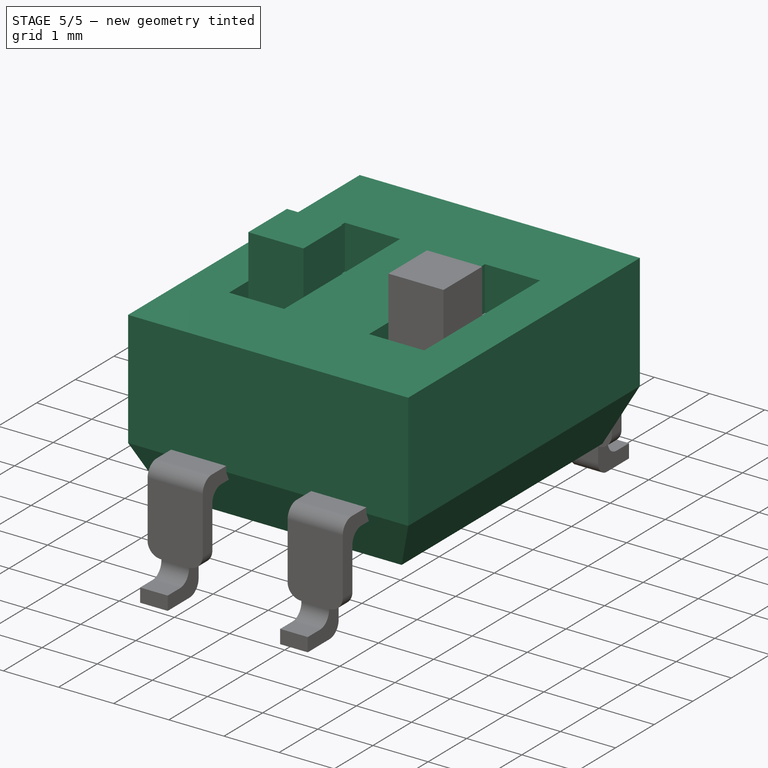
[diagram: stage 5 of 5 — iso view after this stage's code; geometry added in this stage tinted green]
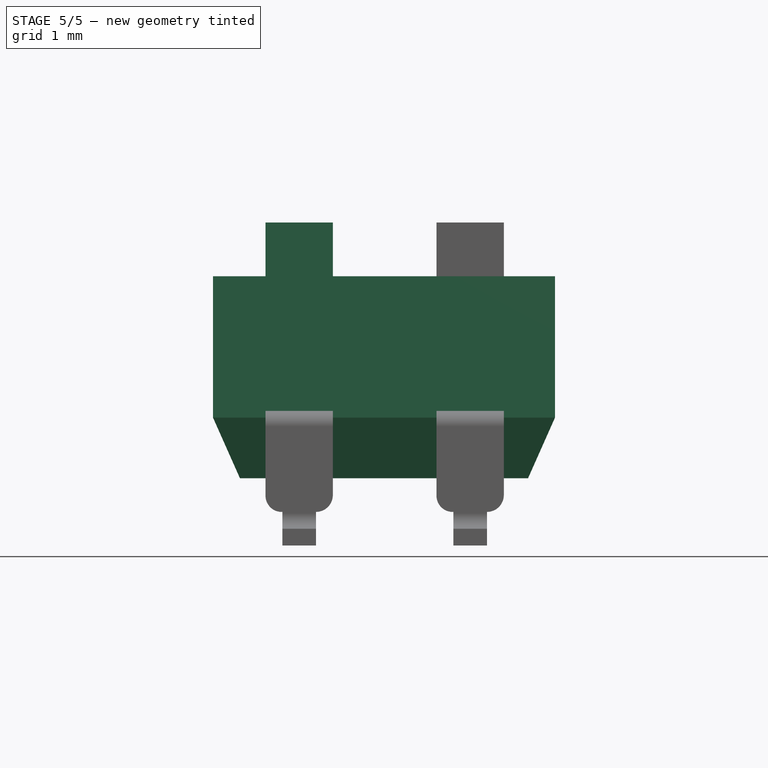
[diagram: stage 5 of 5 — front view after this stage's code; geometry added in this stage tinted green]
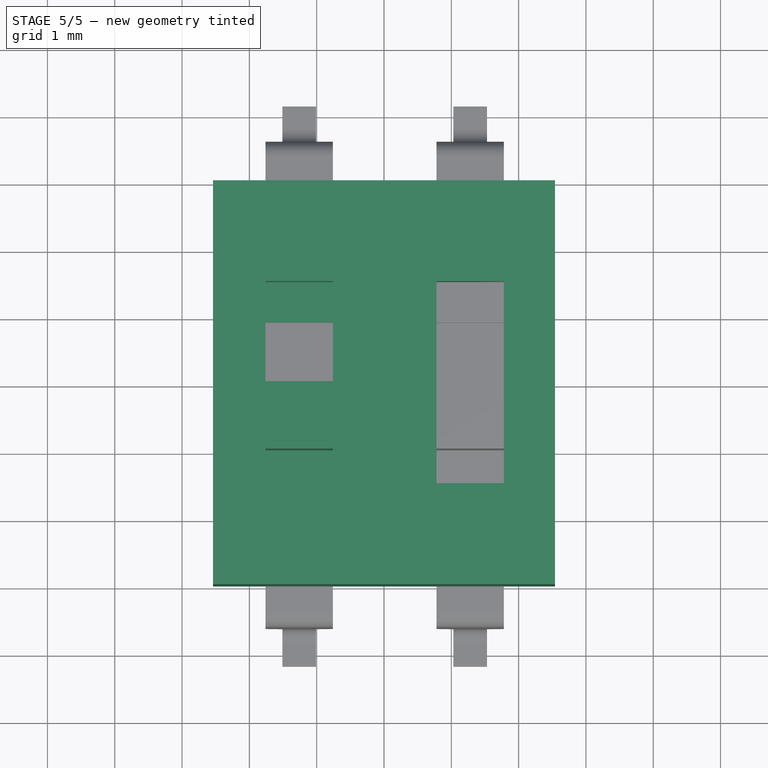
[diagram: stage 5 of 5 — top view after this stage's code; geometry added in this stage tinted green]
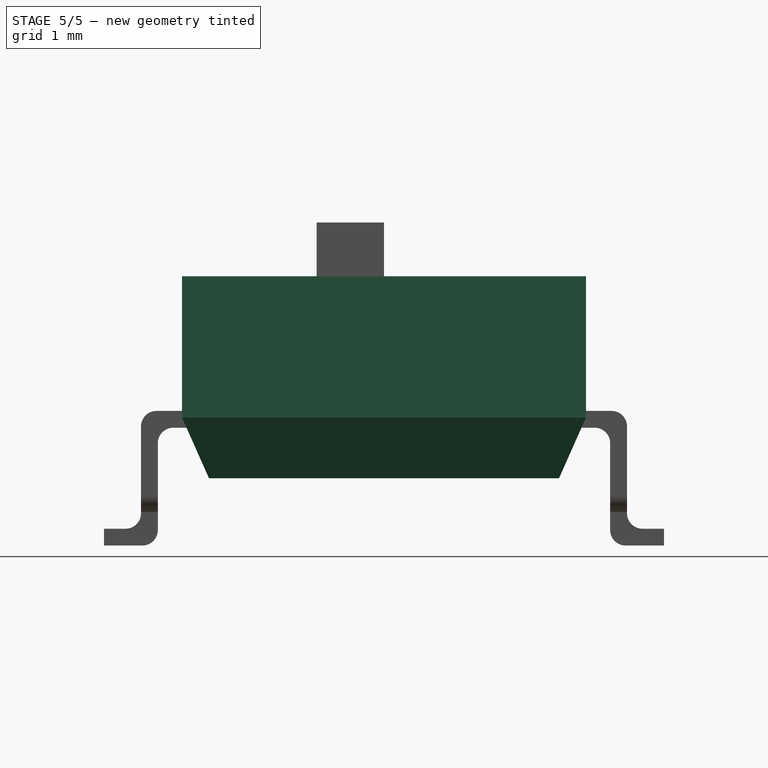
[diagram: stage 5 of 5 — right view after this stage's code; geometry added in this stage tinted green]
FEATURE [Part::Box] Box  label="Cube"
  AttacherType = Attacher::AttachEngine3D
  Height = 1
  Length = 5.08
  Placement = pos=(-2.54,-3,1) rot=(0,0,1;0rad)
  Width = 6
FEATURE [Part::Box] Box001  label="Cube001"
  AttacherType = Attacher::AttachEngine3D
  Height = 2
  Length = 5.08
  Placement = pos=(-2.54,-3,2) rot=(0,0,1;0rad)
  Width = 6
FEATURE [Part::Chamfer] Chamfer
  Base = -> Box
  Edges = 4 edges: [Edge4 r1=0.9 r2=0.4,Edge8 r1=0.9 r2=0.4,Edge9 r1=0.9 r2=0.4,Edge11 r1=0.9 r2=0.4]
FEATURE [Part::Box] Box002  label="Cube002"
  AttacherType = Attacher::AttachEngine3D
  Height = 2
  Length = 1
  Placement = pos=(-1.76,-1.5,2) rot=(0,0,1;0rad)
  Width = 3
FEATURE [Part::Box] Box003  label="Cube003"
  AttacherType = Attacher::AttachEngine3D
  Height = 2
  Length = 1
  Placement = pos=(0.78,-1.5,2) rot=(0,0,1;0rad)
  Width = 3
FEATURE [Part::MultiFuse] Fusion
  Shapes = -> [Box002,Box003]
FEATURE [Part::Cut] Cut
  Base = -> Box001
  Tool = -> Fusion
FEATURE [Part::Box] Box004  label="Cube004"
  AttacherType = Attacher::AttachEngine3D
  Height = 2.8
  Length = 1
  Placement = pos=(-1.76,-1,2) rot=(0,0,1;0rad)
  Width = 1
FEATURE [Part::Box] Box005  label="Cube005"
  AttacherType = Attacher::AttachEngine3D
  Height = 1.2
  Length = 1
  Placement = pos=(-1.76,-1.6,2) rot=(0,0,1;0rad)
  Width = 0.6
FEATURE [Part::Box] Box006  label="Cube006"
  AttacherType = Attacher::AttachEngine3D
  Height = 1.2
  Length = 1
  Placement = pos=(-1.76,0.9,2) rot=(0,0,1;0rad)
  Width = 0.6
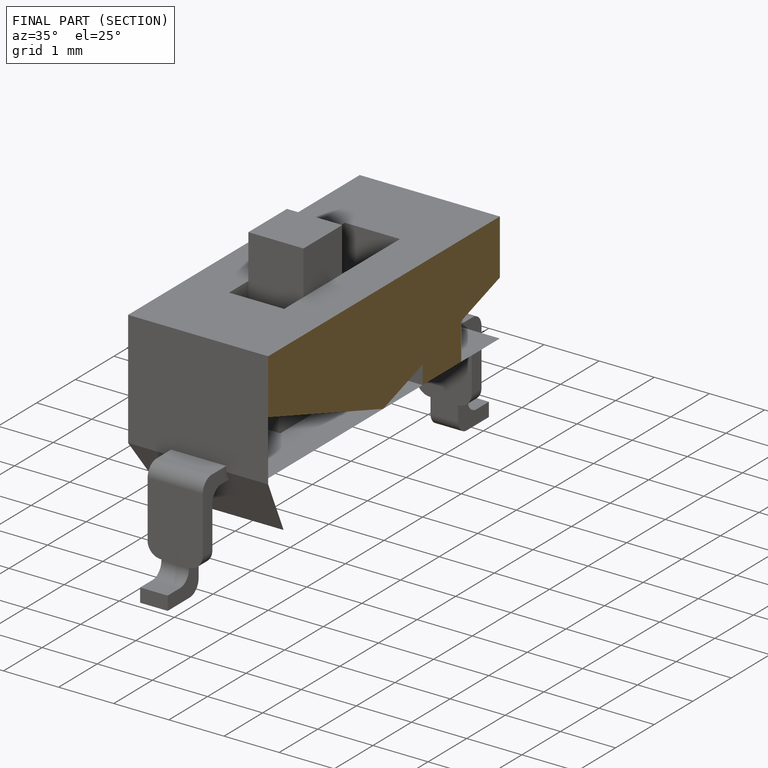
[diagram: finished part — half-section view (interior)]
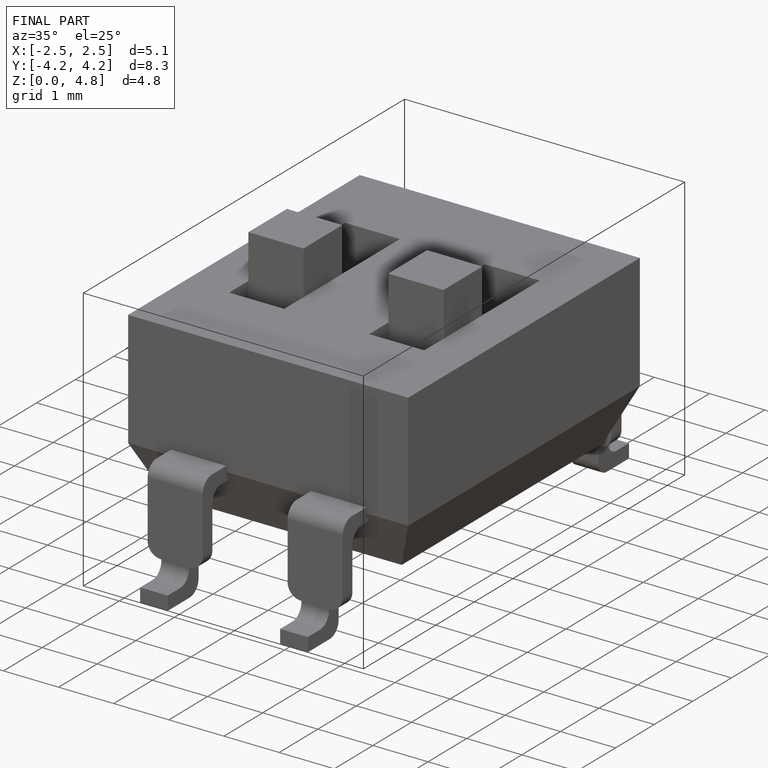
[diagram: finished part — iso view with bounding-box wireframe]
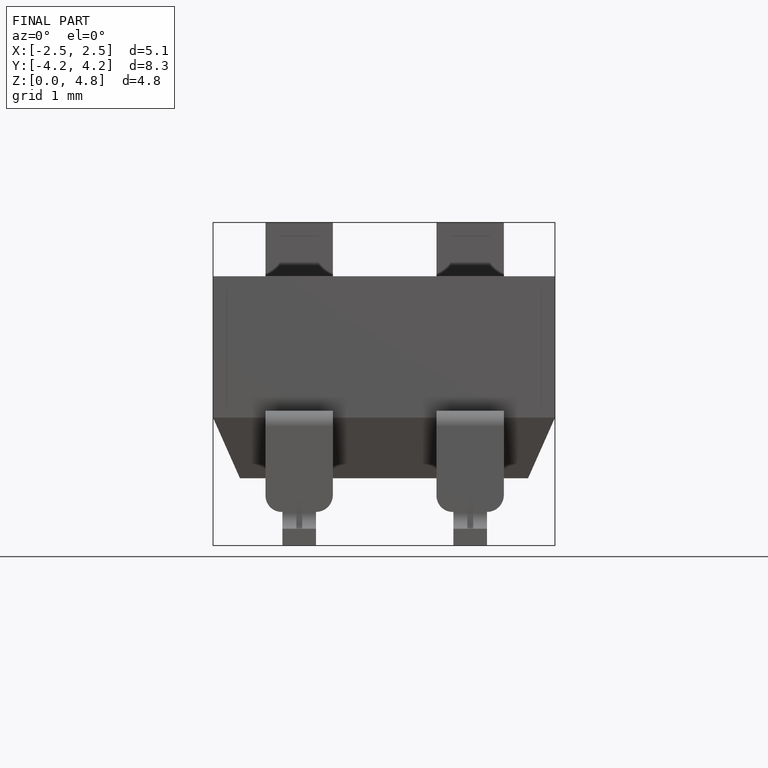
[diagram: finished part — front view with bounding-box wireframe]
